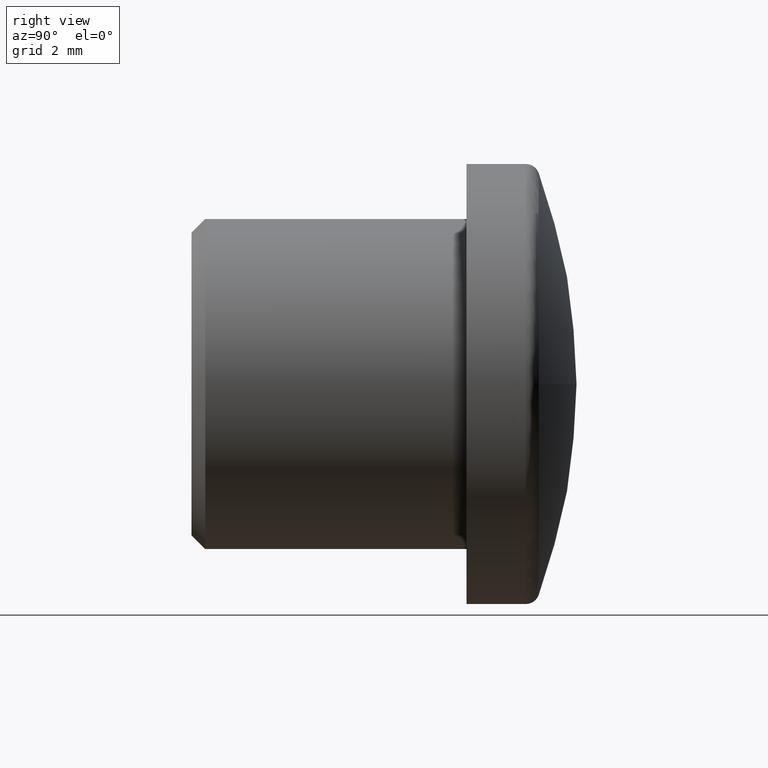
[diagram: clean part render]
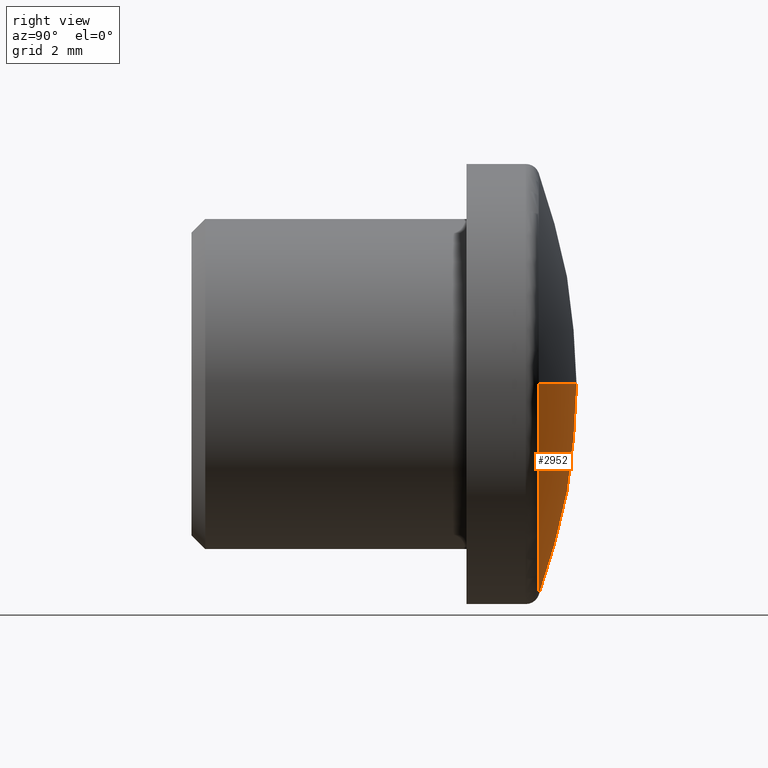
[diagram: same view with one face highlighted and labeled with its STEP entity id]
A machine part, right view. The second image highlights one B-rep face of the part: STEP entity #2952.
In plain terms, the highlighted spherical surface has radius 22.0833 mm.
Its self-contained STEP definition (entity closure, byte-faithful):
#80 = ORIENTED_EDGE ( 'NONE', *, *, #11838, .T. ) ;
#139 = AXIS2_PLACEMENT_3D ( 'NONE', #5685, #6862, #793 ) ;
#753 = ORIENTED_EDGE ( 'NONE', *, *, #4713, .T. ) ;
#788 = EDGE_CURVE ( 'NONE', #13998, #5774, #9928, .T. ) ;
#793 = DIRECTION ( 'NONE',  ( -1.000000000000000000, 0.0000000000000000000, 0.0000000000000000000 ) ) ;
#883 = VERTEX_POINT ( 'NONE', #5013 ) ;
#1019 = EDGE_LOOP ( 'NONE', ( #13475, #10644, #80, #753 ) ) ;
#1140 = CARTESIAN_POINT ( 'NONE',  ( 0.0000000000000000000, 12.62384527988033500, 0.0000000000000000000 ) ) ;
#1393 = AXIS2_PLACEMENT_3D ( 'NONE', #8338, #12863, #2511 ) ;
#1557 = AXIS2_PLACEMENT_3D ( 'NONE', #6457, #12166, #1818 ) ;
#1818 = DIRECTION ( 'NONE',  ( 1.000000000000000000, 0.0000000000000000000, 0.0000000000000000000 ) ) ;
#2382 = CARTESIAN_POINT ( 'NONE',  ( 0.0000000000000000000, 12.62384527988033500, 0.0000000000000000000 ) ) ;
#2511 = DIRECTION ( 'NONE',  ( 1.000000000000000000, 0.0000000000000000000, -1.224646799147353200E-016 ) ) ;
#2952 = ADVANCED_FACE ( 'NONE', ( #14084 ), #4099, .T. ) ;
#4099 = SPHERICAL_SURFACE ( 'NONE', #1557, 22.08333333333334300 ) ;
#4602 = DIRECTION ( 'NONE',  ( 0.0000000000000000000, 0.0000000000000000000, -1.000000000000000000 ) ) ;
#4713 = EDGE_CURVE ( 'NONE', #14953, #5774, #9209, .T. ) ;
#4755 = DIRECTION ( 'NONE',  ( 0.0000000000000000000, 1.000000000000000000, 0.0000000000000000000 ) ) ;
#5013 = CARTESIAN_POINT ( 'NONE',  ( 7.673745173745177600, 12.62384527988033500, 0.0000000000000000000 ) ) ;
#5432 = CARTESIAN_POINT ( 'NONE',  ( 0.0000000000000000000, 12.62384527988033500, -7.673745173745172300 ) ) ;
#5685 = CARTESIAN_POINT ( 'NONE',  ( 0.0000000000000000000, -8.083333333333344600, 0.0000000000000000000 ) ) ;
#5774 = VERTEX_POINT ( 'NONE', #11785 ) ;
#5814 = CARTESIAN_POINT ( 'NONE',  ( 1.352214174058536500E-015, 13.99999999999999800, 0.0000000000000000000 ) ) ;
#6457 = CARTESIAN_POINT ( 'NONE',  ( 0.0000000000000000000, -8.083333333333344600, 0.0000000000000000000 ) ) ;
#6862 = DIRECTION ( 'NONE',  ( 0.0000000000000000000, 0.0000000000000000000, -1.000000000000000000 ) ) ;
#6884 = EDGE_CURVE ( 'NONE', #13998, #883, #12173, .T. ) ;
#6980 = AXIS2_PLACEMENT_3D ( 'NONE', #2382, #12938, #10588 ) ;
#8338 = CARTESIAN_POINT ( 'NONE',  ( 0.0000000000000000000, -8.083333333333344600, 0.0000000000000000000 ) ) ;
#9209 = CIRCLE ( 'NONE', #11203, 7.673745173745172300 ) ;
#9928 = CIRCLE ( 'NONE', #1393, 22.08333333333334300 ) ;
#10588 = DIRECTION ( 'NONE',  ( 0.0000000000000000000, 0.0000000000000000000, -1.000000000000000000 ) ) ;
#10644 = ORIENTED_EDGE ( 'NONE', *, *, #6884, .T. ) ;
#11203 = AXIS2_PLACEMENT_3D ( 'NONE', #1140, #4755, #4602 ) ;
#11785 = CARTESIAN_POINT ( 'NONE',  ( -7.673745173745177600, 12.62384527988033500, 9.397627464499482400E-016 ) ) ;
#11838 = EDGE_CURVE ( 'NONE', #883, #14953, #12744, .T. ) ;
#12166 = DIRECTION ( 'NONE',  ( 0.0000000000000000000, 0.0000000000000000000, 1.000000000000000000 ) ) ;
#12173 = CIRCLE ( 'NONE', #139, 22.08333333333334300 ) ;
#12744 = CIRCLE ( 'NONE', #6980, 7.673745173745172300 ) ;
#12863 = DIRECTION ( 'NONE',  ( 1.224646799147353200E-016, -0.0000000000000000000, 1.000000000000000000 ) ) ;
#12938 = DIRECTION ( 'NONE',  ( 0.0000000000000000000, 1.000000000000000000, 0.0000000000000000000 ) ) ;
#13475 = ORIENTED_EDGE ( 'NONE', *, *, #788, .F. ) ;
#13998 = VERTEX_POINT ( 'NONE', #5814 ) ;
#14084 = FACE_OUTER_BOUND ( 'NONE', #1019, .T. ) ;
#14953 = VERTEX_POINT ( 'NONE', #5432 ) ;